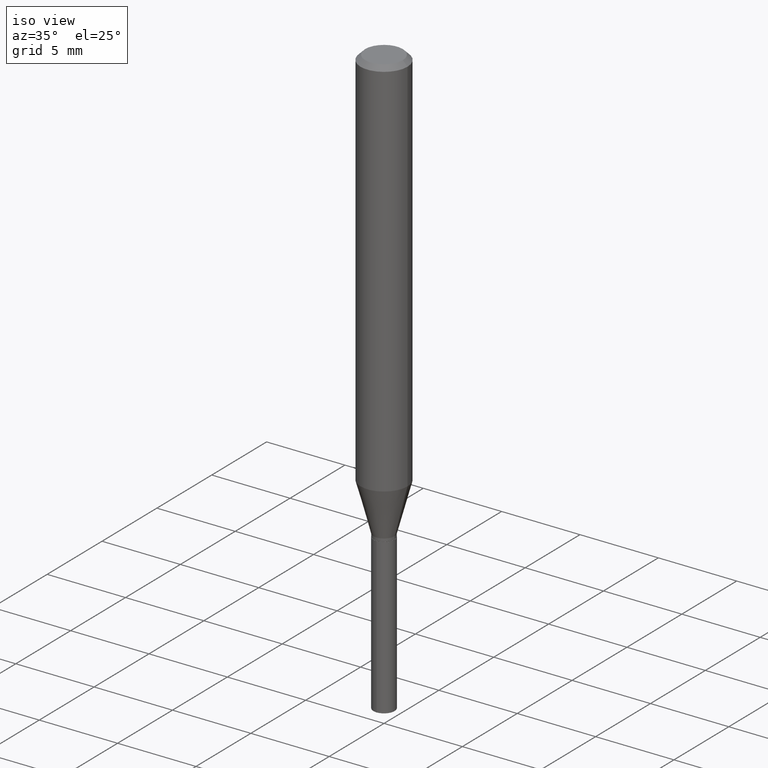
[diagram: clean part render]
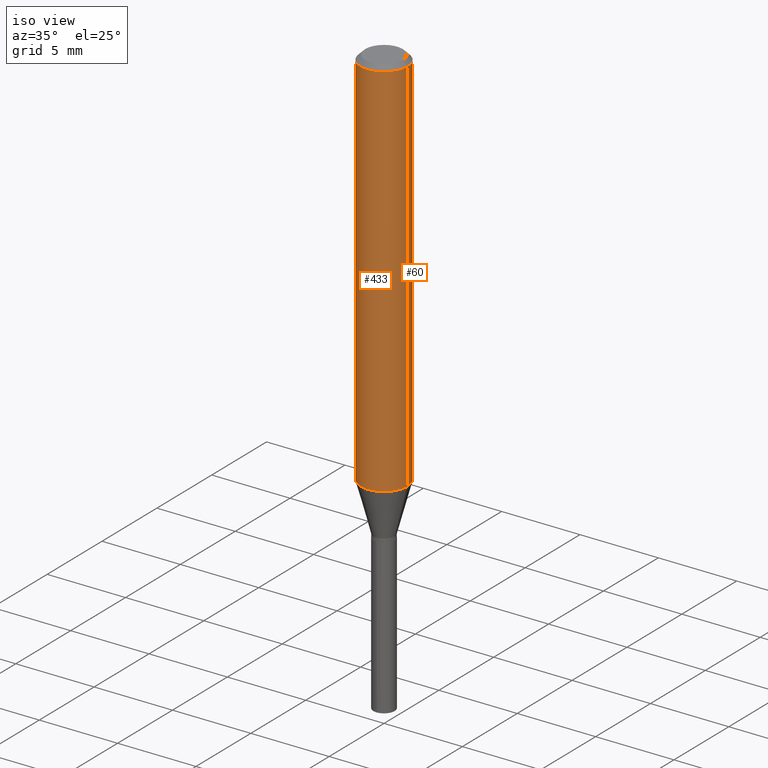
[diagram: same view with one multi-face feature highlighted, each face labeled with its STEP entity id]
A machine part, iso view. The highlighted faces form ONE feature: a constant-radius fillet chain: 2 tangent blend faces with common blend radius 1.4999 mm. The faces share edges in the B-rep.
Their STEP definitions:
[1] entity #60 (Cylinder):
#44 = DIRECTION ( 'NONE',  ( 1.000000000000000000, -6.982962677686266711E-15, 0.000000000000000000 ) ) ;
#46 = CYLINDRICAL_SURFACE ( 'NONE', #242, 0.05905000000000006077 ) ;
#60 = ADVANCED_FACE ( 'NONE', ( #148 ), #46, .T. ) ;
#83 = EDGE_CURVE ( 'NONE', #419, #284, #216, .T. ) ;
#95 = CARTESIAN_POINT ( 'NONE',  ( -0.05905000000000013016, -2.948826042575245259E-15, -0.9647485411328760030 ) ) ;
#97 = ORIENTED_EDGE ( 'NONE', *, *, #179, .F. ) ;
#101 = ORIENTED_EDGE ( 'NONE', *, *, #83, .F. ) ;
#115 = CARTESIAN_POINT ( 'NONE',  ( -0.05904999999999999832, -1.285242475860321155E-15, -0.01181000000000007218 ) ) ;
#135 = ORIENTED_EDGE ( 'NONE', *, *, #292, .T. ) ;
#144 = CIRCLE ( 'NONE', #183, 0.05904999999999999832 ) ;
#148 = FACE_OUTER_BOUND ( 'NONE', #177, .T. ) ;
#177 = EDGE_LOOP ( 'NONE', ( #135, #326, #97, #101 ) ) ;
#179 = EDGE_CURVE ( 'NONE', #284, #288, #144, .T. ) ;
#180 = DIRECTION ( 'NONE',  ( -2.445468806185136877E-29, 3.491481338843145188E-15, 1.000000000000000000 ) ) ;
#183 = AXIS2_PLACEMENT_3D ( 'NONE', #454, #299, #44 ) ;
#186 = CARTESIAN_POINT ( 'NONE',  ( 0.000000000000000000, 0.000000000000000000, 0.000000000000000000 ) ) ;
#198 = DIRECTION ( 'NONE',  ( -2.445468806185136597E-29, 3.491481338843145583E-15, 1.000000000000000000 ) ) ;
#216 = LINE ( 'NONE', #456, #374 ) ;
#220 = DIRECTION ( 'NONE',  ( -2.445468806185136597E-29, 3.491481338843145583E-15, 1.000000000000000000 ) ) ;
#227 = AXIS2_PLACEMENT_3D ( 'NONE', #279, #198, #316 ) ;
#242 = AXIS2_PLACEMENT_3D ( 'NONE', #186, #220, #418 ) ;
#279 = CARTESIAN_POINT ( 'NONE',  ( 2.359262463153066323E-29, -3.368401528041585540E-15, -0.9647485411328760030 ) ) ;
#284 = VERTEX_POINT ( 'NONE', #466 ) ;
#288 = VERTEX_POINT ( 'NONE', #115 ) ;
#292 = EDGE_CURVE ( 'NONE', #419, #453, #321, .T. ) ;
#299 = DIRECTION ( 'NONE',  ( -2.445468806185136597E-29, 3.491481338843145583E-15, 1.000000000000000000 ) ) ;
#316 = DIRECTION ( 'NONE',  ( 1.000000000000000000, -6.982962677686266711E-15, 0.000000000000000000 ) ) ;
#318 = DIRECTION ( 'NONE',  ( -2.445468806185136877E-29, 3.491481338843145188E-15, 1.000000000000000000 ) ) ;
#321 = CIRCLE ( 'NONE', #227, 0.05905000000000011628 ) ;
#326 = ORIENTED_EDGE ( 'NONE', *, *, #445, .T. ) ;
#374 = VECTOR ( 'NONE', #180, 39.37007874015748143 ) ;
#397 = CARTESIAN_POINT ( 'NONE',  ( 0.05905000000000013016, -3.780745474158960461E-15, -0.9647485411328760030 ) ) ;
#398 = LINE ( 'NONE', #434, #428 ) ;
#418 = DIRECTION ( 'NONE',  ( 1.000000000000000000, -6.982962677686266711E-15, 4.876176775795935793E-29 ) ) ;
#419 = VERTEX_POINT ( 'NONE', #397 ) ;
#428 = VECTOR ( 'NONE', #318, 39.37007874015748143 ) ;
#434 = CARTESIAN_POINT ( 'NONE',  ( -0.05905000000000006077, 4.195754854663395916E-16, -2.904631170795524694E-30 ) ) ;
#445 = EDGE_CURVE ( 'NONE', #453, #288, #398, .T. ) ;
#453 = VERTEX_POINT ( 'NONE', #95 ) ;
#454 = CARTESIAN_POINT ( 'NONE',  ( 2.888098660104664204E-31, -4.123439461173780263E-17, -0.01181000000000007218 ) ) ;
#456 = CARTESIAN_POINT ( 'NONE',  ( 0.05905000000000006077, -4.123439461173744764E-16, 2.879382386107503023E-30 ) ) ;
#466 = CARTESIAN_POINT ( 'NONE',  ( 0.05904999999999999832, -4.535783407291118600E-16, -0.01181000000000007218 ) ) ;
[2] entity #433 (Cylinder):
#35 = EDGE_LOOP ( 'NONE', ( #214, #362, #241, #131 ) ) ;
#48 = EDGE_CURVE ( 'NONE', #453, #419, #473, .T. ) ;
#63 = DIRECTION ( 'NONE',  ( -2.445468806185136597E-29, 3.491481338843145583E-15, 1.000000000000000000 ) ) ;
#83 = EDGE_CURVE ( 'NONE', #419, #284, #216, .T. ) ;
#95 = CARTESIAN_POINT ( 'NONE',  ( -0.05905000000000013016, -2.948826042575245259E-15, -0.9647485411328760030 ) ) ;
#100 = AXIS2_PLACEMENT_3D ( 'NONE', #482, #225, #309 ) ;
#115 = CARTESIAN_POINT ( 'NONE',  ( -0.05904999999999999832, -1.285242475860321155E-15, -0.01181000000000007218 ) ) ;
#131 = ORIENTED_EDGE ( 'NONE', *, *, #204, .F. ) ;
#161 = AXIS2_PLACEMENT_3D ( 'NONE', #223, #63, #432 ) ;
#163 = DIRECTION ( 'NONE',  ( 1.000000000000000000, -6.982962677686266711E-15, 0.000000000000000000 ) ) ;
#171 = DIRECTION ( 'NONE',  ( -2.445468806185136597E-29, 3.491481338843145583E-15, 1.000000000000000000 ) ) ;
#180 = DIRECTION ( 'NONE',  ( -2.445468806185136877E-29, 3.491481338843145188E-15, 1.000000000000000000 ) ) ;
#200 = CARTESIAN_POINT ( 'NONE',  ( 2.359262463153066323E-29, -3.368401528041585540E-15, -0.9647485411328760030 ) ) ;
#204 = EDGE_CURVE ( 'NONE', #288, #284, #207, .T. ) ;
#207 = CIRCLE ( 'NONE', #161, 0.05904999999999999832 ) ;
#214 = ORIENTED_EDGE ( 'NONE', *, *, #445, .F. ) ;
#216 = LINE ( 'NONE', #456, #374 ) ;
#223 = CARTESIAN_POINT ( 'NONE',  ( 2.888098660104664204E-31, -4.123439461173780263E-17, -0.01181000000000007218 ) ) ;
#225 = DIRECTION ( 'NONE',  ( -2.445468806185136597E-29, 3.491481338843145583E-15, 1.000000000000000000 ) ) ;
#241 = ORIENTED_EDGE ( 'NONE', *, *, #83, .T. ) ;
#263 = CYLINDRICAL_SURFACE ( 'NONE', #100, 0.05905000000000006077 ) ;
#284 = VERTEX_POINT ( 'NONE', #466 ) ;
#288 = VERTEX_POINT ( 'NONE', #115 ) ;
#302 = AXIS2_PLACEMENT_3D ( 'NONE', #200, #171, #163 ) ;
#309 = DIRECTION ( 'NONE',  ( 1.000000000000000000, -6.982962677686266711E-15, 4.876176775795935793E-29 ) ) ;
#318 = DIRECTION ( 'NONE',  ( -2.445468806185136877E-29, 3.491481338843145188E-15, 1.000000000000000000 ) ) ;
#362 = ORIENTED_EDGE ( 'NONE', *, *, #48, .T. ) ;
#374 = VECTOR ( 'NONE', #180, 39.37007874015748143 ) ;
#397 = CARTESIAN_POINT ( 'NONE',  ( 0.05905000000000013016, -3.780745474158960461E-15, -0.9647485411328760030 ) ) ;
#398 = LINE ( 'NONE', #434, #428 ) ;
#419 = VERTEX_POINT ( 'NONE', #397 ) ;
#428 = VECTOR ( 'NONE', #318, 39.37007874015748143 ) ;
#429 = FACE_OUTER_BOUND ( 'NONE', #35, .T. ) ;
#432 = DIRECTION ( 'NONE',  ( 1.000000000000000000, -6.982962677686266711E-15, 0.000000000000000000 ) ) ;
#433 = ADVANCED_FACE ( 'NONE', ( #429 ), #263, .T. ) ;
#434 = CARTESIAN_POINT ( 'NONE',  ( -0.05905000000000006077, 4.195754854663395916E-16, -2.904631170795524694E-30 ) ) ;
#445 = EDGE_CURVE ( 'NONE', #453, #288, #398, .T. ) ;
#453 = VERTEX_POINT ( 'NONE', #95 ) ;
#456 = CARTESIAN_POINT ( 'NONE',  ( 0.05905000000000006077, -4.123439461173744764E-16, 2.879382386107503023E-30 ) ) ;
#466 = CARTESIAN_POINT ( 'NONE',  ( 0.05904999999999999832, -4.535783407291118600E-16, -0.01181000000000007218 ) ) ;
#473 = CIRCLE ( 'NONE', #302, 0.05905000000000011628 ) ;
#482 = CARTESIAN_POINT ( 'NONE',  ( 0.000000000000000000, 0.000000000000000000, 0.000000000000000000 ) ) ;